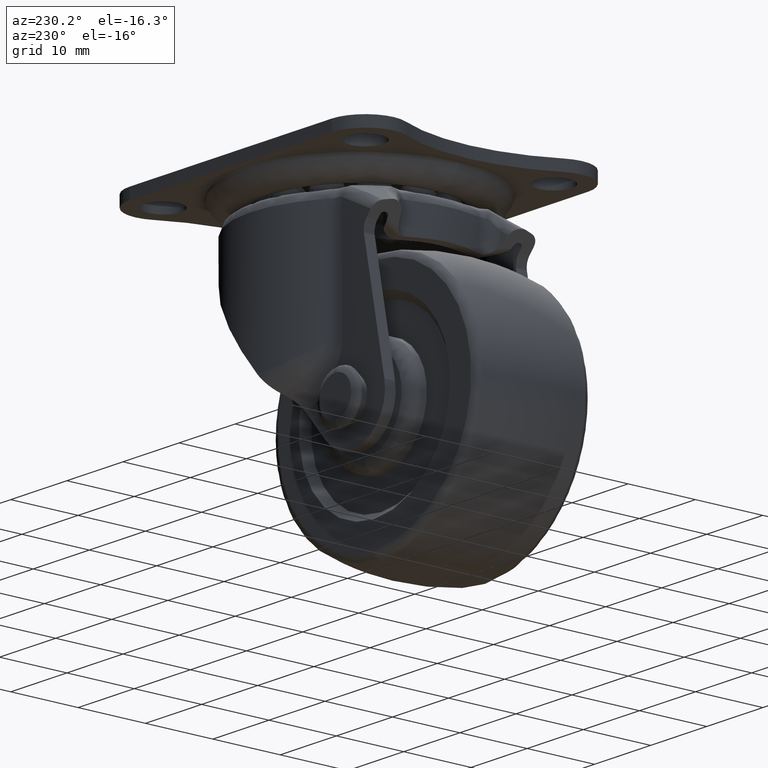
[diagram: clean part render]
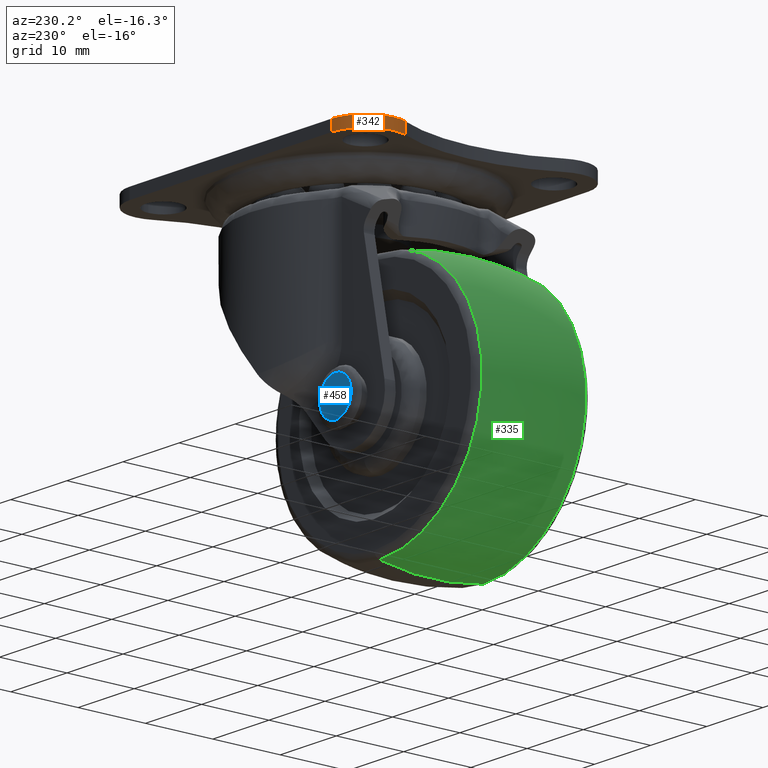
[diagram: same view with three faces highlighted in distinct colors, each labeled with its STEP entity id]
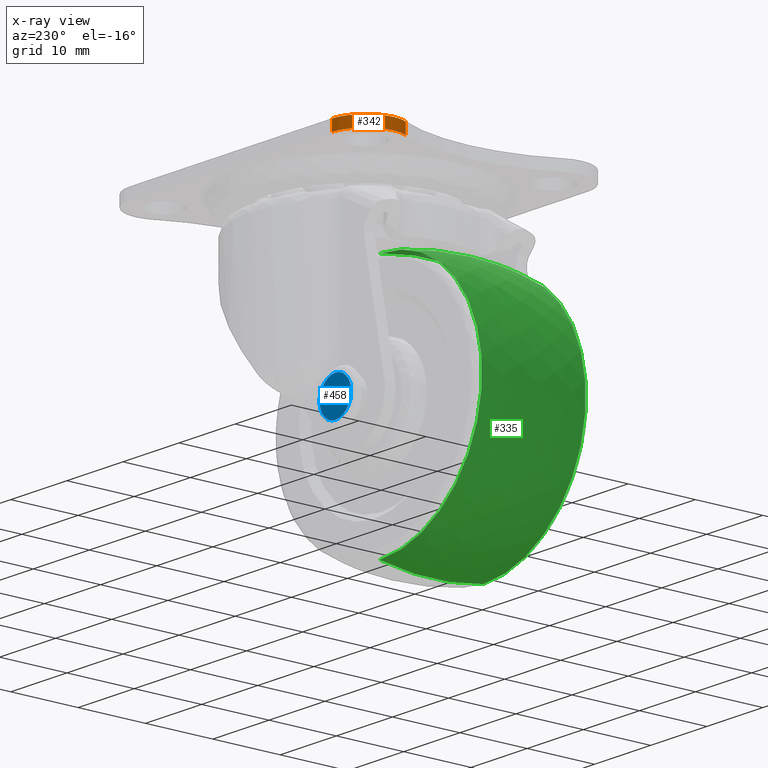
[diagram: x-ray of the same camera — body ghosted, the three highlighted faces saturated]
A machine part, auxiliary view with three faces highlighted in distinct colors.
The next image is the same camera in x-ray (body ghosted, the three faces saturated) — at least one of them is partly hidden behind the body in this view.
Their STEP definitions:

[orange] entity #342 — the highlighted cylindrical surface (partial cylindrical patch) has radius 5 mm, axis along (-0, -0, -1).
#342=ADVANCED_FACE('',(#1682),#1681,.T.);
#1681=CYLINDRICAL_SURFACE('',#4647,5.00000000000E+00);
#1682=FACE_OUTER_BOUND('',#4648,.T.);
#4644=CARTESIAN_POINT('',(-1.80000000000E+01,1.40000000000E+01,-1.00000000000E+03));
#4645=DIRECTION('',(-0.00000000000E+00,-0.00000000000E+00,-1.00000000000E+00));
#4646=DIRECTION('',(8.52640164354E-01,-5.22498564716E-01,0.00000000000E+00));
#4647=AXIS2_PLACEMENT_3D('',#4644,#4645,#4646);
#4648=EDGE_LOOP('',(#6269,#6270,#6271,#6272));
#6269=ORIENTED_EDGE('',*,*,#7164,.T.);
#6270=ORIENTED_EDGE('',*,*,#7165,.T.);
#6271=ORIENTED_EDGE('',*,*,#7143,.F.);
#6272=ORIENTED_EDGE('',*,*,#7166,.F.);
#7143=EDGE_CURVE('',#9414,#9421,#9422,.T.);
#7164=EDGE_CURVE('',#9567,#9568,#9569,.T.);
#7165=EDGE_CURVE('',#9568,#9421,#9575,.T.);
#7166=EDGE_CURVE('',#9567,#9414,#9581,.T.);
#9414=VERTEX_POINT('',#13116);
#9421=VERTEX_POINT('',#13120);
#9422=CIRCLE('',#13124,5.00000000000E+00);
#9567=VERTEX_POINT('',#13223);
#9568=VERTEX_POINT('',#13224);
#9569=CIRCLE('',#13228,5.00000000000E+00);
#9575=LINE('',#13229,#13230);
#9581=LINE('',#13232,#13233);
#13116=CARTESIAN_POINT('',(-1.80000000000E+01,1.90000000000E+01,0.00000000000E+00));
#13120=CARTESIAN_POINT('',(-2.24610718699E+01,1.17419361616E+01,0.00000000000E+00));
#13121=CARTESIAN_POINT('',(-1.80000000000E+01,1.40000000000E+01,0.00000000000E+00));
#13122=DIRECTION('',(0.00000000000E+00,-0.00000000000E+00,1.00000000000E+00));
#13123=DIRECTION('',(1.00000000000E+00,-0.00000000000E+00,-0.00000000000E+00));
#13124=AXIS2_PLACEMENT_3D('',#13121,#13122,#13123);
#13223=CARTESIAN_POINT('',(-1.80000000000E+01,1.90000000000E+01,-1.60000000000E+00));
#13224=CARTESIAN_POINT('',(-2.24610718699E+01,1.17419361616E+01,-1.60000000000E+00));
#13225=CARTESIAN_POINT('',(-1.80000000000E+01,1.40000000000E+01,-1.60000000000E+00));
#13226=DIRECTION('',(0.00000000000E+00,-0.00000000000E+00,1.00000000000E+00));
#13227=DIRECTION('',(1.00000000000E+00,-0.00000000000E+00,-0.00000000000E+00));
#13228=AXIS2_PLACEMENT_3D('',#13225,#13226,#13227);
#13229=CARTESIAN_POINT('',(-2.24610718699E+01,1.17419361616E+01,-1.60000000000E+00));
#13230=VECTOR('',#13231,1.60000000000E+00);
#13231=DIRECTION('',(0.00000000000E+00,0.00000000000E+00,1.00000000000E+00));
#13232=CARTESIAN_POINT('',(-1.80000000000E+01,1.90000000000E+01,-1.60000000000E+00));
#13233=VECTOR('',#13234,1.60000000000E+00);
#13234=DIRECTION('',(0.00000000000E+00,0.00000000000E+00,1.00000000000E+00));

[blue] entity #458 — the highlighted planar face has unit normal (0, 1, 0).
#458=ADVANCED_FACE('',(#2865),#2864,.T.);
#2864=PLANE('',#5536);
#2865=FACE_OUTER_BOUND('',#5537,.T.);
#5533=CARTESIAN_POINT('',(-1.88616780564E+01,1.42999950000E+01,-3.46664501462E+01));
#5534=DIRECTION('',(0.00000000000E+00,1.00000000000E+00,0.00000000000E+00));
#5535=DIRECTION('',(0.00000000000E+00,0.00000000000E+00,1.00000000000E+00));
#5536=AXIS2_PLACEMENT_3D('',#5533,#5534,#5535);
#5537=EDGE_LOOP('',(#6797,#6798));
#6797=ORIENTED_EDGE('',*,*,#7417,.F.);
#6798=ORIENTED_EDGE('',*,*,#7418,.F.);
#7417=EDGE_CURVE('',#11243,#11244,#11245,.T.);
#7418=EDGE_CURVE('',#11244,#11243,#11251,.T.);
#11243=VERTEX_POINT('',#14487);
#11244=VERTEX_POINT('',#14488);
#11245=CIRCLE('',#14492,2.82020165093E+00);
#11251=CIRCLE('',#14496,2.82020165093E+00);
#14487=CARTESIAN_POINT('',(-1.29999990000E+01,1.42999950000E+01,-2.81799863491E+01));
#14488=CARTESIAN_POINT('',(-1.29999990000E+01,1.42999950000E+01,-3.38203896509E+01));
#14489=CARTESIAN_POINT('',(-1.29999990000E+01,1.42999950000E+01,-3.10001880000E+01));
#14490=DIRECTION('',(0.00000000000E+00,-1.00000000000E+00,-0.00000000000E+00));
#14491=DIRECTION('',(-1.22460635382E-16,0.00000000000E+00,-1.00000000000E+00));
#14492=AXIS2_PLACEMENT_3D('',#14489,#14490,#14491);
#14493=CARTESIAN_POINT('',(-1.29999990000E+01,1.42999950000E+01,-3.10001880000E+01));
#14494=DIRECTION('',(0.00000000000E+00,-1.00000000000E+00,-0.00000000000E+00));
#14495=DIRECTION('',(-1.22460635382E-16,0.00000000000E+00,-1.00000000000E+00));
#14496=AXIS2_PLACEMENT_3D('',#14493,#14494,#14495);

[green] entity #335 — the highlighted face is a freeform B-spline surface patch.
#335=ADVANCED_FACE('',(#1606),#1605,.T.);
#1605=( BOUNDED_SURFACE() B_SPLINE_SURFACE( 2,2,((#4538,#4539,#4540,#4541,#4542),(#4543,#4544,#4545,#4546,#4547),(#4548,#4549,#4550,#4551,#4552)), .UNSPECIFIED.,.F.,.F.,.F.) B_SPLINE_SURFACE_WITH_KNOTS((3,3),(3,2,3),(-2.04117204421E-01,2.04117198499E-01),(3.14159265359E+00,4.71238898038E+00,6.28318530718E+00), .UNSPECIFIED. ) GEOMETRIC_REPRESENTATION_ITEM() RATIONAL_B_SPLINE_SURFACE(((1.00000000000E+00,7.07106781187E-01,1.00000000000E+00,7.07106781187E-01,1.00000000000E+00),(9.79240311780E-01,6.92427464871E-01,9.79240311780E-01,6.92427464871E-01,9.79240311780E-01),(1.00000000000E+00,7.07106781187E-01,1.00000000000E+00,7.07106781187E-01,1.00000000000E+00))) REPRESENTATION_ITEM('') SURFACE() );
#1606=FACE_OUTER_BOUND('',#4553,.T.);
#4538=CARTESIAN_POINT('',(-1.29999990000E+01,7.70270525947E+00,-4.92113198248E+01));
#4539=CARTESIAN_POINT('',(-3.12111308248E+01,7.70270525947E+00,-4.92113198248E+01));
#4540=CARTESIAN_POINT('',(-3.12111308248E+01,7.70270525947E+00,-3.10001880000E+01));
#4541=CARTESIAN_POINT('',(-3.12111308248E+01,7.70270525947E+00,-1.27890561752E+01));
#4542=CARTESIAN_POINT('',(-1.29999990000E+01,7.70270525947E+00,-1.27890561752E+01));
#4543=CARTESIAN_POINT('',(-1.29999990000E+01,1.14920713390E-07,-5.08057799909E+01));
#4544=CARTESIAN_POINT('',(-3.28055909909E+01,1.14920713390E-07,-5.08057799909E+01));
#4545=CARTESIAN_POINT('',(-3.28055909909E+01,1.14920713390E-07,-3.10001880000E+01));
#4546=CARTESIAN_POINT('',(-3.28055909909E+01,1.14920713390E-07,-1.11945960091E+01));
#4547=CARTESIAN_POINT('',(-1.29999990000E+01,1.14920713390E-07,-1.11945960091E+01));
#4548=CARTESIAN_POINT('',(-1.29999990000E+01,-7.70270503907E+00,-4.92113198705E+01));
#4549=CARTESIAN_POINT('',(-3.12111308705E+01,-7.70270503907E+00,-4.92113198705E+01));
#4550=CARTESIAN_POINT('',(-3.12111308705E+01,-7.70270503907E+00,-3.10001880000E+01));
#4551=CARTESIAN_POINT('',(-3.12111308705E+01,-7.70270503907E+00,-1.27890561295E+01));
#4552=CARTESIAN_POINT('',(-1.29999990000E+01,-7.70270503907E+00,-1.27890561295E+01));
#4553=EDGE_LOOP('',(#6227,#6228,#6229,#6230));
#6227=ORIENTED_EDGE('',*,*,#7137,.F.);
#6228=ORIENTED_EDGE('',*,*,#7134,.F.);
#6229=ORIENTED_EDGE('',*,*,#7130,.T.);
#6230=ORIENTED_EDGE('',*,*,#7136,.T.);
#7130=EDGE_CURVE('',#9337,#9338,#9339,.T.);
#7134=EDGE_CURVE('',#9337,#9363,#9364,.T.);
#7136=EDGE_CURVE('',#9338,#9370,#9377,.T.);
#7137=EDGE_CURVE('',#9363,#9370,#9383,.T.);
#9337=VERTEX_POINT('',#13072);
#9338=VERTEX_POINT('',#13073);
#9339=CIRCLE('',#13077,1.82111317959E+01);
#9363=VERTEX_POINT('',#13088);
#9364=(BOUNDED_CURVE() B_SPLINE_CURVE(2,(#13089,#13090,#13091),.UNSPECIFIED.,.F.,.F.) B_SPLINE_CURVE_WITH_KNOTS((3,3),(-2.04117204421E-01,2.04117198499E-01),.UNSPECIFIED.) CURVE() GEOMETRIC_REPRESENTATION_ITEM() RATIONAL_B_SPLINE_CURVE((1.00000000000E+00,9.79240311780E-01,1.00000000000E+00)) REPRESENTATION_ITEM('') );
#9370=VERTEX_POINT('',#13092);
#9377=(BOUNDED_CURVE() B_SPLINE_CURVE(2,(#13097,#13098,#13099),.UNSPECIFIED.,.F.,.F.) B_SPLINE_CURVE_WITH_KNOTS((3,3),(-2.04117204421E-01,2.04117198499E-01),.UNSPECIFIED.) CURVE() GEOMETRIC_REPRESENTATION_ITEM() RATIONAL_B_SPLINE_CURVE((1.00000000000E+00,9.79240311780E-01,1.00000000000E+00)) REPRESENTATION_ITEM('') );
#9383=CIRCLE('',#13103,1.82111318705E+01);
#13072=CARTESIAN_POINT('',(-1.29999990000E+01,7.70270525947E+00,-1.27890562041E+01));
#13073=CARTESIAN_POINT('',(-1.29999990000E+01,7.70270525947E+00,-4.92113197959E+01));
#13074=CARTESIAN_POINT('',(-1.29999990000E+01,7.70270525947E+00,-3.10001880000E+01));
#13075=DIRECTION('',(0.00000000000E+00,-1.00000000000E+00,-0.00000000000E+00));
#13076=DIRECTION('',(-1.22460635382E-16,0.00000000000E+00,-1.00000000000E+00));
#13077=AXIS2_PLACEMENT_3D('',#13074,#13075,#13076);
#13088=CARTESIAN_POINT('',(-1.29999990000E+01,-7.70270503907E+00,-1.27890561295E+01));
#13089=CARTESIAN_POINT('',(-1.29999990000E+01,7.70270525947E+00,-1.27890561752E+01));
#13090=CARTESIAN_POINT('',(-1.29999990000E+01,1.14920713390E-07,-1.11945960091E+01));
#13091=CARTESIAN_POINT('',(-1.29999990000E+01,-7.70270503907E+00,-1.27890561295E+01));
#13092=CARTESIAN_POINT('',(-1.29999990000E+01,-7.70270503907E+00,-4.92113198705E+01));
#13097=CARTESIAN_POINT('',(-1.29999990000E+01,7.70270525947E+00,-4.92113198248E+01));
#13098=CARTESIAN_POINT('',(-1.29999990000E+01,1.14920713390E-07,-5.08057799909E+01));
#13099=CARTESIAN_POINT('',(-1.29999990000E+01,-7.70270503907E+00,-4.92113198705E+01));
#13100=CARTESIAN_POINT('',(-1.29999990000E+01,-7.70270503907E+00,-3.10001880000E+01));
#13101=DIRECTION('',(0.00000000000E+00,-1.00000000000E+00,-0.00000000000E+00));
#13102=DIRECTION('',(-1.22460635382E-16,0.00000000000E+00,-1.00000000000E+00));
#13103=AXIS2_PLACEMENT_3D('',#13100,#13101,#13102);